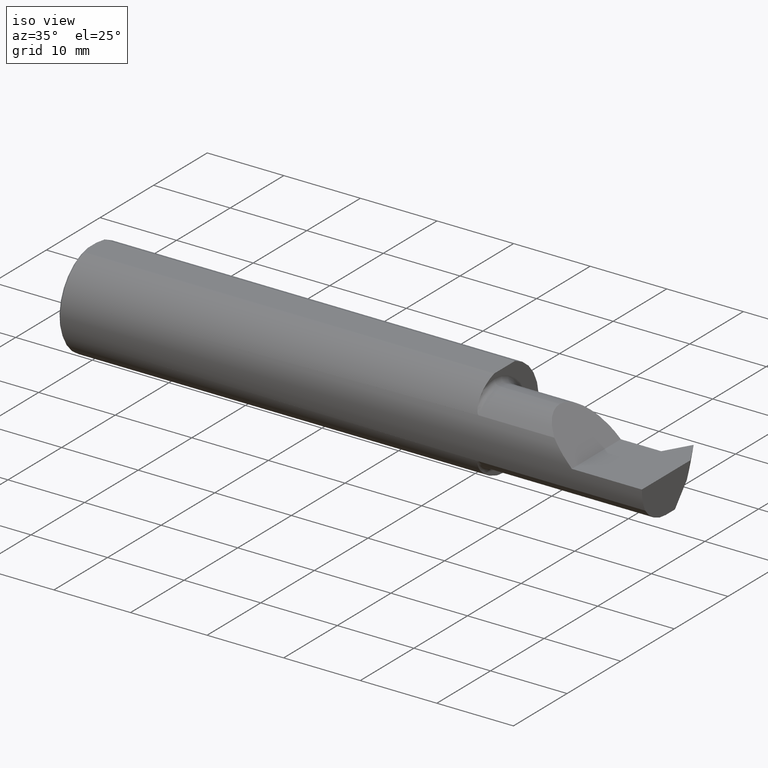
[diagram: clean part render]
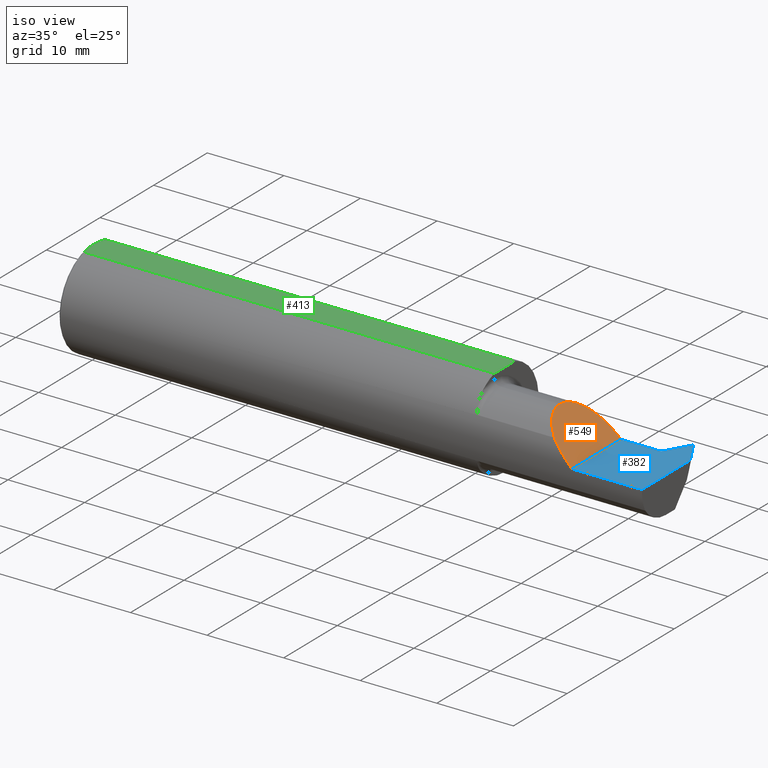
[diagram: same view with three faces highlighted in distinct colors, each labeled with its STEP entity id]
A machine part, iso view with three faces highlighted in distinct colors.
Their STEP definitions:

[orange] entity #549 — the highlighted planar face has unit normal (-0.7071, 0, -0.7071).
#24 = AXIS2_PLACEMENT_3D ( 'NONE', #790, #63, #279 ) ;
#28 = CARTESIAN_POINT ( 'NONE',  ( 2.640000000000000124, -0.2498499999999999610, 1.053196247266722782E-16 ) ) ;
#41 = ORIENTED_EDGE ( 'NONE', *, *, #311, .T. ) ;
#53 = EDGE_CURVE ( 'NONE', #469, #461, #367, .T. ) ;
#63 = DIRECTION ( 'NONE',  ( -0.7071067811865441310, 0.000000000000000000, -0.7071067811865509034 ) ) ;
#88 = CARTESIAN_POINT ( 'NONE',  ( 2.566617523761941744, -0.2417016428557104135, 0.07338247623805806141 ) ) ;
#115 = CARTESIAN_POINT ( 'NONE',  ( 2.533048970379631282, -0.2258019038076143903, 0.1069510296203681071 ) ) ;
#135 =( BOUNDED_CURVE ( )  B_SPLINE_CURVE ( 3, ( #580, #355, #913, #708 ),
 .UNSPECIFIED., .F., .T. ) 
 B_SPLINE_CURVE_WITH_KNOTS ( ( 4, 4 ),
 ( 0.000000000000000000, 1.570796326794895892 ),
 .UNSPECIFIED. ) 
 CURVE ( )  GEOMETRIC_REPRESENTATION_ITEM ( )  RATIONAL_B_SPLINE_CURVE ( ( 1.000000000000000000, 0.8047378541243652705, 0.8047378541243652705, 1.000000000000000000 ) ) 
 REPRESENTATION_ITEM ( '' )  );
#153 = CARTESIAN_POINT ( 'NONE',  ( 2.640000000000000124, 0.1101499999999998869, 2.574479715540877281E-16 ) ) ;
#165 = LINE ( 'NONE', #860, #249 ) ;
#204 = EDGE_CURVE ( 'NONE', #461, #630, #298, .T. ) ;
#241 = DIRECTION ( 'NONE',  ( -0.000000000000000000, 1.000000000000000000, -0.000000000000000000 ) ) ;
#249 = VECTOR ( 'NONE', #241, 39.37007874015748143 ) ;
#279 = DIRECTION ( 'NONE',  ( -0.7071067811865509034, 0.000000000000000000, 0.7071067811865441310 ) ) ;
#298 =( BOUNDED_CURVE ( )  B_SPLINE_CURVE ( 3, ( #541, #470, #737, #308 ),
 .UNSPECIFIED., .F., .T. ) 
 B_SPLINE_CURVE_WITH_KNOTS ( ( 4, 4 ),
 ( 5.328803974130450705, 6.283185307179586232 ),
 .UNSPECIFIED. ) 
 CURVE ( )  GEOMETRIC_REPRESENTATION_ITEM ( )  RATIONAL_B_SPLINE_CURVE ( ( 1.000000000000000000, 0.9255258083546842318, 0.9255258083546842318, 1.000000000000000000 ) ) 
 REPRESENTATION_ITEM ( '' )  );
#308 = CARTESIAN_POINT ( 'NONE',  ( 2.454999999999998295, -0.07485000000000026354, 0.1850000000000001643 ) ) ;
#311 = EDGE_CURVE ( 'NONE', #469, #573, #165, .T. ) ;
#355 = CARTESIAN_POINT ( 'NONE',  ( 2.454999999999998295, 0.03352049096097719366, 0.1850000000000001643 ) ) ;
#361 = FACE_OUTER_BOUND ( 'NONE', #567, .T. ) ;
#367 =( BOUNDED_CURVE ( )  B_SPLINE_CURVE ( 3, ( #28, #509, #88, #604 ),
 .UNSPECIFIED., .F., .F. ) 
 B_SPLINE_CURVE_WITH_KNOTS ( ( 4, 4 ),
 ( 4.712388980384689674, 5.154735109466819232 ),
 .UNSPECIFIED. ) 
 CURVE ( )  GEOMETRIC_REPRESENTATION_ITEM ( )  RATIONAL_B_SPLINE_CURVE ( ( 1.000000000000000000, 0.9837605203333757986, 0.9837605203333757986, 1.000000000000000000 ) ) 
 REPRESENTATION_ITEM ( '' )  );
#454 = ORIENTED_EDGE ( 'NONE', *, *, #204, .F. ) ;
#461 = VERTEX_POINT ( 'NONE', #115 ) ;
#469 = VERTEX_POINT ( 'NONE', #903 ) ;
#470 = CARTESIAN_POINT ( 'NONE',  ( 2.483109776329333940, -0.1904194535875915195, 0.1568902236706649356 ) ) ;
#501 = CARTESIAN_POINT ( 'NONE',  ( 2.454999999999998295, -0.07485000000000026354, 0.1850000000000001643 ) ) ;
#509 = CARTESIAN_POINT ( 'NONE',  ( 2.602856366925426546, -0.2498500000000000443, 0.03714363307457331509 ) ) ;
#541 = CARTESIAN_POINT ( 'NONE',  ( 2.533048970379631282, -0.2258019038076143903, 0.1069510296203681071 ) ) ;
#549 = ADVANCED_FACE ( 'NONE', ( #361 ), #915, .F. ) ;
#567 = EDGE_LOOP ( 'NONE', ( #454, #600, #41, #702 ) ) ;
#573 = VERTEX_POINT ( 'NONE', #153 ) ;
#580 = CARTESIAN_POINT ( 'NONE',  ( 2.454999999999998295, -0.07485000000000026354, 0.1850000000000001643 ) ) ;
#600 = ORIENTED_EDGE ( 'NONE', *, *, #53, .F. ) ;
#604 = CARTESIAN_POINT ( 'NONE',  ( 2.533048970379631282, -0.2258019038076143903, 0.1069510296203681071 ) ) ;
#630 = VERTEX_POINT ( 'NONE', #501 ) ;
#702 = ORIENTED_EDGE ( 'NONE', *, *, #703, .F. ) ;
#703 = EDGE_CURVE ( 'NONE', #630, #573, #135, .T. ) ;
#708 = CARTESIAN_POINT ( 'NONE',  ( 2.640000000000000124, 0.1101499999999998869, 2.574479715540877281E-16 ) ) ;
#737 = CARTESIAN_POINT ( 'NONE',  ( 2.454999999999998295, -0.1360532751245032979, 0.1850000000000001643 ) ) ;
#790 = CARTESIAN_POINT ( 'NONE',  ( 2.640000000000000124, -0.2500000000000000555, 1.053196247266722782E-16 ) ) ;
#860 = CARTESIAN_POINT ( 'NONE',  ( 2.640000000000000124, -0.2500000000000000555, 1.053196247266722782E-16 ) ) ;
#903 = CARTESIAN_POINT ( 'NONE',  ( 2.640000000000000124, -0.2498499999999999610, 1.053196247266722782E-16 ) ) ;
#913 = CARTESIAN_POINT ( 'NONE',  ( 2.531629509039021730, 0.1101499999999998591, 0.1083704909609775613 ) ) ;
#915 = PLANE ( 'NONE',  #24 ) ;

[blue] entity #382 — the highlighted planar face has unit normal (-0, 0, -1).
#7 = ORIENTED_EDGE ( 'NONE', *, *, #142, .F. ) ;
#11 = VERTEX_POINT ( 'NONE', #284 ) ;
#32 = EDGE_CURVE ( 'NONE', #866, #779, #783, .T. ) ;
#142 = EDGE_CURVE ( 'NONE', #11, #833, #375, .T. ) ;
#143 = CARTESIAN_POINT ( 'NONE',  ( 2.120000000000000551, 0.2381499999999998618, 2.574479715540877281E-16 ) ) ;
#153 = CARTESIAN_POINT ( 'NONE',  ( 2.640000000000000124, 0.1101499999999998869, 2.574479715540877281E-16 ) ) ;
#162 = CARTESIAN_POINT ( 'NONE',  ( 3.000000000000000444, -0.2498499999999999888, 0.000000000000000000 ) ) ;
#165 = LINE ( 'NONE', #860, #249 ) ;
#212 = CARTESIAN_POINT ( 'NONE',  ( 2.921500000000000430, 0.2381499999999999451, 0.000000000000000000 ) ) ;
#223 = CARTESIAN_POINT ( 'NONE',  ( 3.000000000000000444, 0.000000000000000000, 0.000000000000000000 ) ) ;
#239 = CARTESIAN_POINT ( 'NONE',  ( 2.921500000000000430, 0.2381499999999999451, 0.000000000000000000 ) ) ;
#241 = DIRECTION ( 'NONE',  ( -0.000000000000000000, 1.000000000000000000, -0.000000000000000000 ) ) ;
#249 = VECTOR ( 'NONE', #241, 39.37007874015748143 ) ;
#284 = CARTESIAN_POINT ( 'NONE',  ( 3.000000000000000444, 0.1073801640285483444, 0.000000000000000000 ) ) ;
#290 = EDGE_CURVE ( 'NONE', #573, #916, #807, .T. ) ;
#305 = VECTOR ( 'NONE', #782, 39.37007874015748143 ) ;
#310 = CARTESIAN_POINT ( 'NONE',  ( 2.567644294575713274E-31, -0.2498499999999999610, 8.776635393889356229E-16 ) ) ;
#311 = EDGE_CURVE ( 'NONE', #469, #573, #165, .T. ) ;
#315 = CARTESIAN_POINT ( 'NONE',  ( 2.120000000000000551, 0.1101499999999998869, 2.574479715540877281E-16 ) ) ;
#333 = ORIENTED_EDGE ( 'NONE', *, *, #290, .F. ) ;
#334 = CARTESIAN_POINT ( 'NONE',  ( 3.000000000000000444, -0.2500000000000000555, 0.000000000000000000 ) ) ;
#353 = CARTESIAN_POINT ( 'NONE',  ( 2.847599165543729605, 0.1101499999999998869, 0.000000000000000000 ) ) ;
#375 = LINE ( 'NONE', #223, #706 ) ;
#382 = ADVANCED_FACE ( 'NONE', ( #689 ), #404, .F. ) ;
#387 = EDGE_CURVE ( 'NONE', #779, #11, #887, .T. ) ;
#403 = VECTOR ( 'NONE', #637, 39.37007874015748143 ) ;
#404 = PLANE ( 'NONE',  #670 ) ;
#407 = ORIENTED_EDGE ( 'NONE', *, *, #32, .F. ) ;
#412 = DIRECTION ( 'NONE',  ( 0.4999999999999949485, -0.8660254037844414832, 0.000000000000000000 ) ) ;
#418 = VECTOR ( 'NONE', #412, 39.37007874015748854 ) ;
#423 = LINE ( 'NONE', #353, #403 ) ;
#440 = DIRECTION ( 'NONE',  ( 1.000000000000000000, 0.000000000000000000, 0.000000000000000000 ) ) ;
#462 = VECTOR ( 'NONE', #676, 39.37007874015748143 ) ;
#463 = VECTOR ( 'NONE', #440, 39.37007874015748143 ) ;
#469 = VERTEX_POINT ( 'NONE', #903 ) ;
#478 = ORIENTED_EDGE ( 'NONE', *, *, #589, .F. ) ;
#531 = EDGE_LOOP ( 'NONE', ( #407, #478, #714, #333, #546, #756, #7, #772 ) ) ;
#546 = ORIENTED_EDGE ( 'NONE', *, *, #311, .F. ) ;
#573 = VERTEX_POINT ( 'NONE', #153 ) ;
#589 = EDGE_CURVE ( 'NONE', #635, #866, #712, .T. ) ;
#590 = DIRECTION ( 'NONE',  ( 0.000000000000000000, -1.000000000000000000, 0.000000000000000000 ) ) ;
#607 = LINE ( 'NONE', #310, #462 ) ;
#610 = CARTESIAN_POINT ( 'NONE',  ( 2.838193708807416282, 0.1101499999999998869, 0.000000000000000000 ) ) ;
#620 = DIRECTION ( 'NONE',  ( -2.925545131296452734E-16, 0.000000000000000000, -1.000000000000000000 ) ) ;
#635 = VERTEX_POINT ( 'NONE', #840 ) ;
#637 = DIRECTION ( 'NONE',  ( 1.000000000000000000, -0.000000000000000000, -0.000000000000000000 ) ) ;
#663 = EDGE_CURVE ( 'NONE', #916, #635, #423, .T. ) ;
#670 = AXIS2_PLACEMENT_3D ( 'NONE', #334, #620, #897 ) ;
#676 = DIRECTION ( 'NONE',  ( -1.000000000000000000, -0.000000000000000000, -0.000000000000000000 ) ) ;
#689 = FACE_OUTER_BOUND ( 'NONE', #531, .T. ) ;
#706 = VECTOR ( 'NONE', #590, 39.37007874015748143 ) ;
#712 = LINE ( 'NONE', #212, #305 ) ;
#714 = ORIENTED_EDGE ( 'NONE', *, *, #663, .F. ) ;
#756 = ORIENTED_EDGE ( 'NONE', *, *, #861, .F. ) ;
#772 = ORIENTED_EDGE ( 'NONE', *, *, #387, .F. ) ;
#779 = VERTEX_POINT ( 'NONE', #784 ) ;
#782 = DIRECTION ( 'NONE',  ( 0.4999999999999943379, 0.8660254037844418162, -0.000000000000000000 ) ) ;
#783 = LINE ( 'NONE', #143, #463 ) ;
#784 = CARTESIAN_POINT ( 'NONE',  ( 2.924500000000000544, 0.2381499999999999451, 0.000000000000000000 ) ) ;
#786 = VECTOR ( 'NONE', #877, 39.37007874015748143 ) ;
#807 = LINE ( 'NONE', #315, #786 ) ;
#821 = CARTESIAN_POINT ( 'NONE',  ( 2.924500000000000544, 0.2381499999999999451, 0.000000000000000000 ) ) ;
#833 = VERTEX_POINT ( 'NONE', #162 ) ;
#840 = CARTESIAN_POINT ( 'NONE',  ( 2.847599165543729605, 0.1101499999999998869, 0.000000000000000000 ) ) ;
#860 = CARTESIAN_POINT ( 'NONE',  ( 2.640000000000000124, -0.2500000000000000555, 1.053196247266722782E-16 ) ) ;
#861 = EDGE_CURVE ( 'NONE', #833, #469, #607, .T. ) ;
#866 = VERTEX_POINT ( 'NONE', #239 ) ;
#877 = DIRECTION ( 'NONE',  ( 1.000000000000000000, 0.000000000000000000, 0.000000000000000000 ) ) ;
#887 = LINE ( 'NONE', #821, #418 ) ;
#897 = DIRECTION ( 'NONE',  ( -1.000000000000000000, 0.000000000000000000, 2.925545131296452734E-16 ) ) ;
#903 = CARTESIAN_POINT ( 'NONE',  ( 2.640000000000000124, -0.2498499999999999610, 1.053196247266722782E-16 ) ) ;
#916 = VERTEX_POINT ( 'NONE', #610 ) ;

[green] entity #413 — the highlighted planar face has unit normal (0, 0, 1).
#2 = EDGE_CURVE ( 'NONE', #660, #132, #169, .T. ) ;
#23 = CARTESIAN_POINT ( 'NONE',  ( 0.001983148254845710189, -0.04629825796642594860, 0.2378499999999998671 ) ) ;
#42 = CARTESIAN_POINT ( 'NONE',  ( 0.000000000000000000, 0.2498499999999998500, 0.2378499999999998671 ) ) ;
#54 = DIRECTION ( 'NONE',  ( 1.000000000000000000, 0.000000000000000000, -0.000000000000000000 ) ) ;
#60 = DIRECTION ( 'NONE',  ( 0.000000000000000000, 1.000000000000000000, 0.000000000000000000 ) ) ;
#82 = EDGE_CURVE ( 'NONE', #287, #190, #884, .T. ) ;
#92 = CARTESIAN_POINT ( 'NONE',  ( 0.000000000000000000, -0.03090954545120560767, 0.2378499999999998671 ) ) ;
#98 = AXIS2_PLACEMENT_3D ( 'NONE', #621, #344, #54 ) ;
#131 = CARTESIAN_POINT ( 'NONE',  ( 0.000000000000000000, 0.03090954545120574992, 0.2378499999999998671 ) ) ;
#132 = VERTEX_POINT ( 'NONE', #804 ) ;
#169 = B_SPLINE_CURVE_WITH_KNOTS ( 'NONE', 3,
 ( #791, #292, #587, #643 ),
 .UNSPECIFIED., .F., .F.,
 ( 4, 4 ),
 ( 0.01593449416844765903, 0.01712021724825598876 ),
 .UNSPECIFIED. ) ;
#174 = VECTOR ( 'NONE', #908, 39.37007874015748143 ) ;
#190 = VERTEX_POINT ( 'NONE', #366 ) ;
#287 = VERTEX_POINT ( 'NONE', #816 ) ;
#291 = CARTESIAN_POINT ( 'NONE',  ( 2.120000000000000551, -0.07650098038587548055, 0.2378499999999998671 ) ) ;
#292 = CARTESIAN_POINT ( 'NONE',  ( 0.002005502345409073024, 0.04647171987093980799, 0.2378499999999998671 ) ) ;
#309 = ORIENTED_EDGE ( 'NONE', *, *, #2, .F. ) ;
#320 = EDGE_CURVE ( 'NONE', #190, #660, #328, .T. ) ;
#328 = LINE ( 'NONE', #42, #545 ) ;
#335 = FACE_OUTER_BOUND ( 'NONE', #399, .T. ) ;
#340 = LINE ( 'NONE', #482, #391 ) ;
#344 = DIRECTION ( 'NONE',  ( 0.000000000000000000, 0.000000000000000000, 1.000000000000000000 ) ) ;
#350 = ORIENTED_EDGE ( 'NONE', *, *, #444, .T. ) ;
#366 = CARTESIAN_POINT ( 'NONE',  ( 0.000000000000000000, -0.03090954545120560767, 0.2378499999999998671 ) ) ;
#379 = CARTESIAN_POINT ( 'NONE',  ( 0.009999999999999927350, -0.07650098038587520299, 0.2378499999999998671 ) ) ;
#391 = VECTOR ( 'NONE', #60, 39.37007874015748143 ) ;
#399 = EDGE_LOOP ( 'NONE', ( #350, #669, #608, #309, #741, #883 ) ) ;
#413 = ADVANCED_FACE ( 'NONE', ( #335 ), #697, .T. ) ;
#432 = EDGE_CURVE ( 'NONE', #538, #681, #340, .T. ) ;
#444 = EDGE_CURVE ( 'NONE', #287, #538, #548, .T. ) ;
#482 = CARTESIAN_POINT ( 'NONE',  ( 2.120000000000000551, 0.2498499999999998500, 0.2378499999999998671 ) ) ;
#486 = EDGE_CURVE ( 'NONE', #681, #132, #614, .T. ) ;
#538 = VERTEX_POINT ( 'NONE', #291 ) ;
#545 = VECTOR ( 'NONE', #685, 39.37007874015748143 ) ;
#548 = LINE ( 'NONE', #701, #856 ) ;
#561 = DIRECTION ( 'NONE',  ( 1.000000000000000000, 0.000000000000000000, 0.000000000000000000 ) ) ;
#587 = CARTESIAN_POINT ( 'NONE',  ( 0.005466242398876407227, 0.06169385855649833772, 0.2378499999999998671 ) ) ;
#608 = ORIENTED_EDGE ( 'NONE', *, *, #486, .T. ) ;
#614 = LINE ( 'NONE', #629, #174 ) ;
#621 = CARTESIAN_POINT ( 'NONE',  ( 3.501298404146671484, 0.2498499999999998500, 0.2378499999999998671 ) ) ;
#629 = CARTESIAN_POINT ( 'NONE',  ( 0.000000000000000000, 0.07650098038587520299, 0.2378499999999998671 ) ) ;
#643 = CARTESIAN_POINT ( 'NONE',  ( 0.009999999999999927350, 0.07650098038587520299, 0.2378499999999998671 ) ) ;
#660 = VERTEX_POINT ( 'NONE', #131 ) ;
#669 = ORIENTED_EDGE ( 'NONE', *, *, #432, .T. ) ;
#681 = VERTEX_POINT ( 'NONE', #849 ) ;
#685 = DIRECTION ( 'NONE',  ( -0.000000000000000000, 1.000000000000000000, -0.000000000000000000 ) ) ;
#697 = PLANE ( 'NONE',  #98 ) ;
#701 = CARTESIAN_POINT ( 'NONE',  ( 0.000000000000000000, -0.07650098038587520299, 0.2378499999999998671 ) ) ;
#741 = ORIENTED_EDGE ( 'NONE', *, *, #320, .F. ) ;
#785 = CARTESIAN_POINT ( 'NONE',  ( 0.005459900170181729989, -0.06167314502012864741, 0.2378499999999998671 ) ) ;
#791 = CARTESIAN_POINT ( 'NONE',  ( 0.000000000000000000, 0.03090954545120574992, 0.2378499999999998671 ) ) ;
#804 = CARTESIAN_POINT ( 'NONE',  ( 0.009999999999999927350, 0.07650098038587520299, 0.2378499999999998671 ) ) ;
#816 = CARTESIAN_POINT ( 'NONE',  ( 0.009999999999999927350, -0.07650098038587520299, 0.2378499999999998671 ) ) ;
#849 = CARTESIAN_POINT ( 'NONE',  ( 2.120000000000000551, 0.07650098038587520299, 0.2378499999999998671 ) ) ;
#856 = VECTOR ( 'NONE', #561, 39.37007874015748143 ) ;
#883 = ORIENTED_EDGE ( 'NONE', *, *, #82, .F. ) ;
#884 = B_SPLINE_CURVE_WITH_KNOTS ( 'NONE', 3,
 ( #379, #785, #23, #92 ),
 .UNSPECIFIED., .F., .F.,
 ( 4, 4 ),
 ( 0.01317593029100226111, 0.01435802289191457325 ),
 .UNSPECIFIED. ) ;
#908 = DIRECTION ( 'NONE',  ( -1.000000000000000000, -0.000000000000000000, -0.000000000000000000 ) ) ;